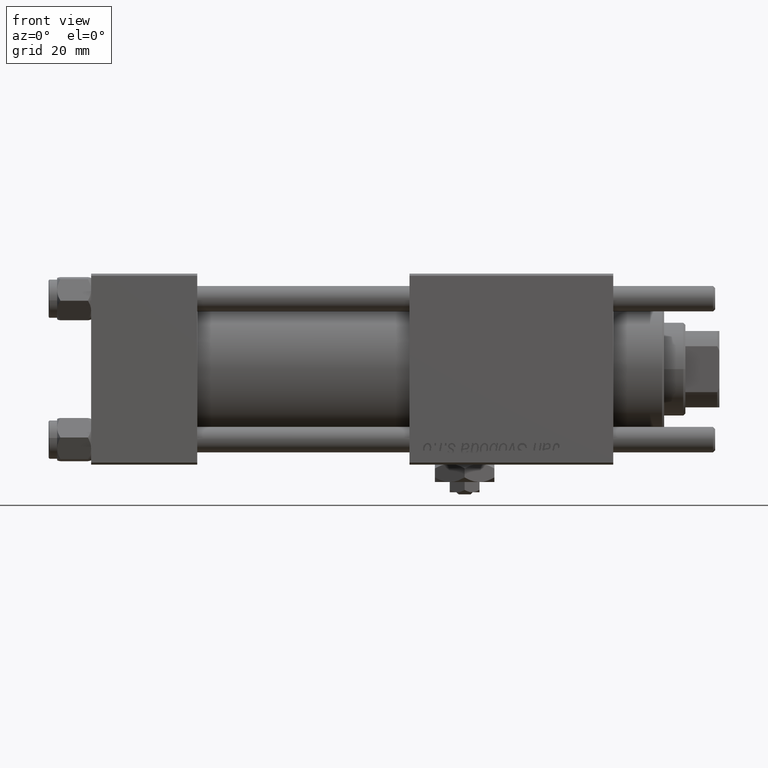
[diagram: clean part render]
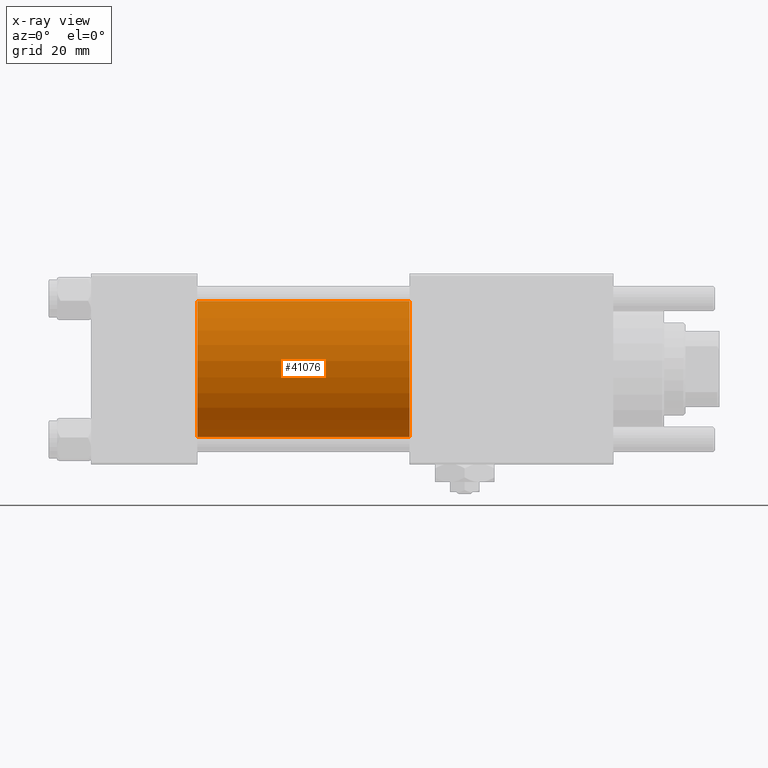
[diagram: x-ray — body ghosted, one internal face saturated and labeled with its STEP entity id]
A machine part, front view, then the same camera in x-ray: the body is ghosted and one INTERNAL B-rep face — a face not visible from any outside direction — is saturated and labeled: STEP entity #41076.
In plain terms, the highlighted cylindrical surface (partial cylindrical patch) has radius 16 mm, axis along (-1, -0, -0).
Its self-contained STEP definition (entity closure, byte-faithful):
#254 = ORIENTED_EDGE ( 'NONE', *, *, #46386, .F. ) ;
#651 = LINE ( 'NONE', #4518, #19550 ) ;
#1369 = EDGE_CURVE ( 'NONE', #54570, #32410, #38831, .T. ) ;
#2050 = DIRECTION ( 'NONE',  ( 1.000000000000000000, 0.000000000000000000, 0.000000000000000000 ) ) ;
#2864 = DIRECTION ( 'NONE',  ( -1.000000000000000000, -0.000000000000000000, -0.000000000000000000 ) ) ;
#4518 = CARTESIAN_POINT ( 'NONE',  ( 75.00000000000001421, -2.602085213965210642E-15, 16.00000000000000000 ) ) ;
#4797 = DIRECTION ( 'NONE',  ( -1.000000000000000000, -0.000000000000000000, -0.000000000000000000 ) ) ;
#5118 = DIRECTION ( 'NONE',  ( -1.000000000000000000, -0.000000000000000000, -0.000000000000000000 ) ) ;
#5151 = EDGE_LOOP ( 'NONE', ( #6738, #5928, #51451, #254 ) ) ;
#5496 = VERTEX_POINT ( 'NONE', #39674 ) ;
#5928 = ORIENTED_EDGE ( 'NONE', *, *, #29460, .T. ) ;
#6738 = ORIENTED_EDGE ( 'NONE', *, *, #33051, .T. ) ;
#8244 = CARTESIAN_POINT ( 'NONE',  ( 75.00000000000001421, -2.602085213965210642E-15, 0.000000000000000000 ) ) ;
#15060 = CARTESIAN_POINT ( 'NONE',  ( 25.00000000000000000, -2.602085213965210642E-15, 0.000000000000000000 ) ) ;
#18240 = VECTOR ( 'NONE', #5118, 1000.000000000000000 ) ;
#18411 = LINE ( 'NONE', #18698, #18240 ) ;
#18698 = CARTESIAN_POINT ( 'NONE',  ( 75.00000000000001421, -6.426503353294456087E-16, -16.00000000000000000 ) ) ;
#19506 = AXIS2_PLACEMENT_3D ( 'NONE', #42814, #2864, #56440 ) ;
#19550 = VECTOR ( 'NONE', #4797, 1000.000000000000000 ) ;
#20187 = AXIS2_PLACEMENT_3D ( 'NONE', #8244, #57115, #39045 ) ;
#23057 = CARTESIAN_POINT ( 'NONE',  ( 75.00000000000001421, -6.426503353294456087E-16, -16.00000000000000000 ) ) ;
#24922 = CIRCLE ( 'NONE', #20187, 16.00000000000000000 ) ;
#25331 = FACE_OUTER_BOUND ( 'NONE', #5151, .T. ) ;
#27649 = VERTEX_POINT ( 'NONE', #23057 ) ;
#29460 = EDGE_CURVE ( 'NONE', #27649, #32410, #18411, .T. ) ;
#31237 = AXIS2_PLACEMENT_3D ( 'NONE', #15060, #2050, #33119 ) ;
#32410 = VERTEX_POINT ( 'NONE', #41833 ) ;
#33051 = EDGE_CURVE ( 'NONE', #5496, #27649, #24922, .T. ) ;
#33119 = DIRECTION ( 'NONE',  ( 0.000000000000000000, 0.000000000000000000, -1.000000000000000000 ) ) ;
#38831 = CIRCLE ( 'NONE', #31237, 16.00000000000000000 ) ;
#39045 = DIRECTION ( 'NONE',  ( 0.000000000000000000, 0.000000000000000000, -1.000000000000000000 ) ) ;
#39674 = CARTESIAN_POINT ( 'NONE',  ( 75.00000000000001421, -2.602085213965210642E-15, 16.00000000000000000 ) ) ;
#41076 = ADVANCED_FACE ( 'NONE', ( #25331 ), #43678, .F. ) ;
#41833 = CARTESIAN_POINT ( 'NONE',  ( 25.00000000000000000, -6.426503353294456087E-16, -16.00000000000000000 ) ) ;
#42814 = CARTESIAN_POINT ( 'NONE',  ( 75.00000000000001421, -2.602085213965210642E-15, 0.000000000000000000 ) ) ;
#43678 = CYLINDRICAL_SURFACE ( 'NONE', #19506, 16.00000000000000000 ) ;
#46386 = EDGE_CURVE ( 'NONE', #5496, #54570, #651, .T. ) ;
#51451 = ORIENTED_EDGE ( 'NONE', *, *, #1369, .F. ) ;
#51525 = CARTESIAN_POINT ( 'NONE',  ( 25.00000000000000000, -2.602085213965210642E-15, 16.00000000000000000 ) ) ;
#54570 = VERTEX_POINT ( 'NONE', #51525 ) ;
#56440 = DIRECTION ( 'NONE',  ( 0.000000000000000000, 0.000000000000000000, 1.000000000000000000 ) ) ;
#57115 = DIRECTION ( 'NONE',  ( 1.000000000000000000, 0.000000000000000000, 0.000000000000000000 ) ) ;